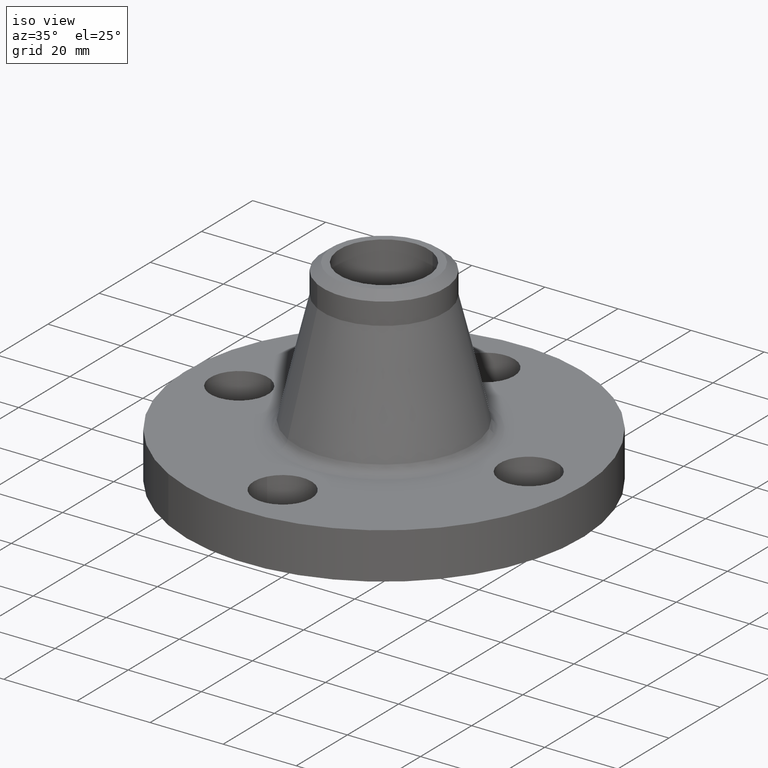
[diagram: clean part render]
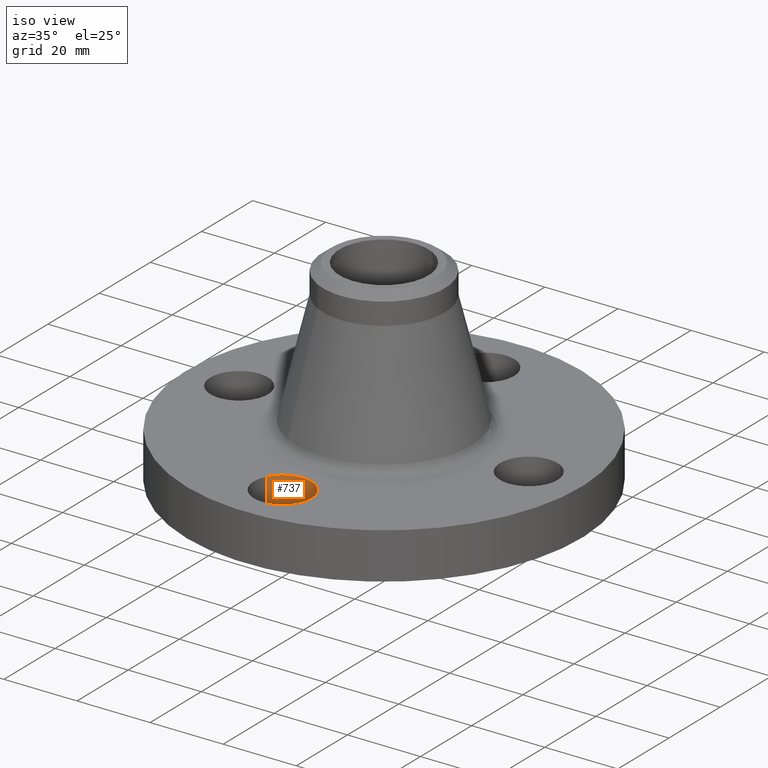
[diagram: same view with one face highlighted and labeled with its STEP entity id]
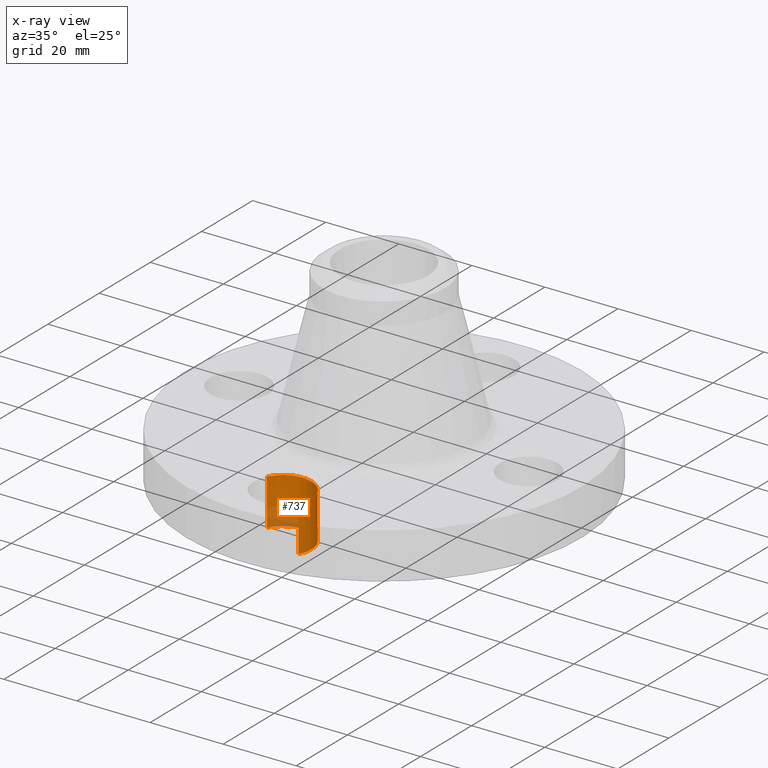
[diagram: x-ray of the same camera — body ghosted, the highlighted face saturated]
A machine part, iso view. The second image highlights one B-rep face of the part: STEP entity #737.
The next image is the same camera in x-ray: the body ghosted, the highlighted face saturated — about 23% of this face is hidden behind the body in this view.
In plain terms, the highlighted cylindrical surface (edge-blend (fillet) strip) has radius 7.874 mm, axis along (-0, 0, -1).
Its self-contained STEP definition (entity closure, byte-faithful):
#530=AXIS2_PLACEMENT_3D('Circle Axis2P3D',#528,#529,$) ;
#544=AXIS2_PLACEMENT_3D('Circle Axis2P3D',#542,#543,$) ;
#697=AXIS2_PLACEMENT_3D('Cylinder Axis2P3D',#694,#695,#696) ;
#727=AXIS2_PLACEMENT_3D('Circle Axis2P3D',#725,#726,$) ;
#502=CARTESIAN_POINT('Vertex',(-1.04991633196E-016,-1.25000000001,0.)) ;
#528=CARTESIAN_POINT('Axis2P3D Location',(2.27289753073E-016,-1.56000000001,0.)) ;
#532=CARTESIAN_POINT('Vertex',(-0.272050594187,-1.41137808304,0.)) ;
#539=CARTESIAN_POINT('Vertex',(0.272050594187,-1.70862191697,0.)) ;
#542=CARTESIAN_POINT('Axis2P3D Location',(2.27289753073E-016,-1.56000000001,0.)) ;
#694=CARTESIAN_POINT('Axis2P3D Location',(1.91044900668E-016,-1.56000000001,0.496062992128)) ;
#699=CARTESIAN_POINT('Line Origine',(0.272050594187,-1.70862191697,0.250000000001)) ;
#703=CARTESIAN_POINT('Vertex',(0.272050594187,-1.70862191697,0.500000000002)) ;
#706=CARTESIAN_POINT('Line Origine',(-0.272050594187,-1.41137808304,0.250000000001)) ;
#710=CARTESIAN_POINT('Vertex',(-0.272050594187,-1.41137808304,0.500000000002)) ;
#725=CARTESIAN_POINT('Axis2P3D Location',(1.91044900668E-016,-1.56000000001,0.500000000002)) ;
#529=DIRECTION('Axis2P3D Direction',(0.,0.,-0.0393700787402)) ;
#543=DIRECTION('Axis2P3D Direction',(0.,0.,-0.0393700787402)) ;
#695=DIRECTION('Axis2P3D Direction',(-0.,0.,-0.0393700787402)) ;
#696=DIRECTION('Axis2P3D XDirection',(-0.0345504945626,0.0188750212049,0.)) ;
#700=DIRECTION('Vector Direction',(0.,0.,-0.0393700787402)) ;
#707=DIRECTION('Vector Direction',(0.,0.,-0.0393700787402)) ;
#726=DIRECTION('Axis2P3D Direction',(-0.,0.,-0.0393700787402)) ;
#701=VECTOR('Line Direction',#700,0.0393700787402) ;
#708=VECTOR('Line Direction',#707,0.0393700787402) ;
#731=ORIENTED_EDGE('',*,*,#712,.F.) ;
#732=ORIENTED_EDGE('',*,*,#534,.T.) ;
#733=ORIENTED_EDGE('',*,*,#546,.T.) ;
#734=ORIENTED_EDGE('',*,*,#705,.T.) ;
#735=ORIENTED_EDGE('',*,*,#729,.F.) ;
#737=ADVANCED_FACE('PartBody',(#736),#698,.F.) ;
#531=CIRCLE('generated circle',#530,0.310000000001) ;
#545=CIRCLE('generated circle',#544,0.310000000001) ;
#728=CIRCLE('generated circle',#727,0.310000000001) ;
#698=CYLINDRICAL_SURFACE('generated cylinder',#697,0.310000000001) ;
#534=EDGE_CURVE('',#533,#503,#531,.T.) ;
#546=EDGE_CURVE('',#503,#540,#545,.T.) ;
#705=EDGE_CURVE('',#540,#704,#702,.F.) ;
#712=EDGE_CURVE('',#533,#711,#709,.F.) ;
#729=EDGE_CURVE('',#711,#704,#728,.T.) ;
#730=EDGE_LOOP('',(#731,#732,#733,#734,#735)) ;
#736=FACE_OUTER_BOUND('',#730,.T.) ;
#702=LINE('Line',#699,#701) ;
#709=LINE('Line',#706,#708) ;
#503=VERTEX_POINT('',#502) ;
#533=VERTEX_POINT('',#532) ;
#540=VERTEX_POINT('',#539) ;
#704=VERTEX_POINT('',#703) ;
#711=VERTEX_POINT('',#710) ;